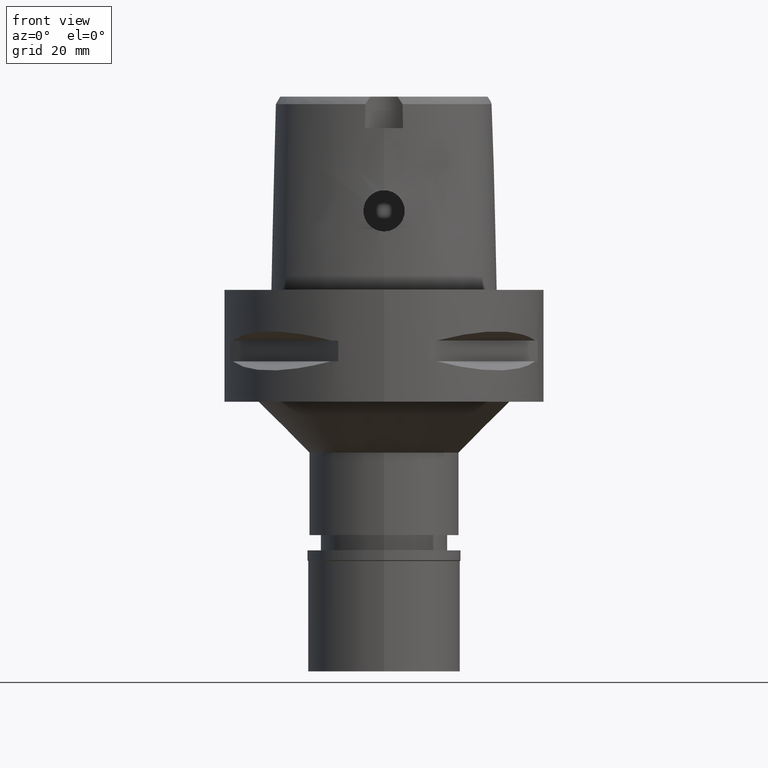
[diagram: clean part render]
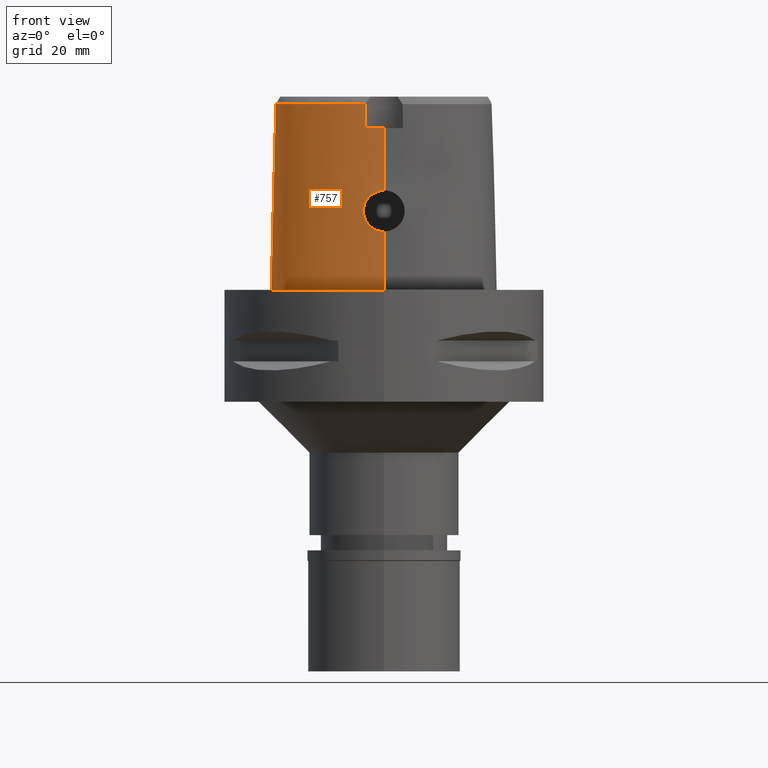
[diagram: same view with one face highlighted and labeled with its STEP entity id]
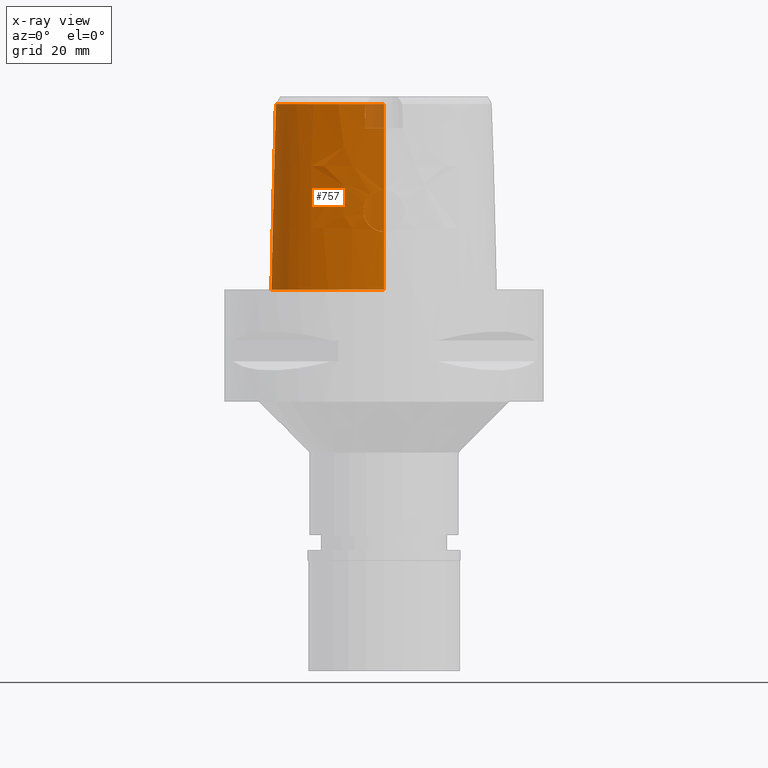
[diagram: x-ray of the same camera — body ghosted, the highlighted face saturated]
A machine part, front view. The second image highlights one B-rep face of the part: STEP entity #757.
The next image is the same camera in x-ray: the body ghosted, the highlighted face saturated — about 2% of this face is hidden behind the body in this view.
In plain terms, the highlighted face is a freeform B-spline surface patch.
Its self-contained STEP definition (entity closure, byte-faithful):
#12 = CARTESIAN_POINT ( 'NONE',  ( -17.27359245833659429, 9.972912913898239751, 36.52186244848000740 ) ) ;
#38 = CARTESIAN_POINT ( 'NONE',  ( -2.842644224804045550, -20.09987142781886504, 18.38477281627273641 ) ) ;
#65 = CARTESIAN_POINT ( 'NONE',  ( -14.67337964306607923, -17.21410156051415541, 9.097698115689833998E-08 ) ) ;
#76 = CARTESIAN_POINT ( 'NONE',  ( -7.420053129394999836, 21.05635743858000097, 11.93048290018000124 ) ) ;
#94 = CARTESIAN_POINT ( 'NONE',  ( -2.438150598142999836, 22.68791636790999888, 24.59140352894999992 ) ) ;
#106 = CARTESIAN_POINT ( 'NONE',  ( -4.049379680853593122, -20.05052626983709274, 15.57776437390323210 ) ) ;
#127 = CARTESIAN_POINT ( 'NONE',  ( -0.5057620903841074655, -20.38876923348000147, 11.44999999999999751 ) ) ;
#131 = CARTESIAN_POINT ( 'NONE',  ( 0.6850314080310000442, 22.83959044425999707, 24.59140352894999992 ) ) ;
#170 = CARTESIAN_POINT ( 'NONE',  ( -2.503210902086999923, 22.99958937651000213, 11.93048290018000124 ) ) ;
#179 = CARTESIAN_POINT ( 'NONE',  ( -17.53318575312999883, 10.12278928418000135, 24.59140352894999992 ) ) ;
#182 = CARTESIAN_POINT ( 'NONE',  ( -3.227766138993819922, -20.20018163078716000, 13.05019263089297255 ) ) ;
#211 = CARTESIAN_POINT ( 'NONE',  ( -1.853278689760999853, -20.08023921223999864, 24.59140352894999992 ) ) ;
#232 = CARTESIAN_POINT ( 'NONE',  ( -20.46725043096000007, 4.555493644599000191, 11.93048290018000124 ) ) ;
#261 = CARTESIAN_POINT ( 'NONE',  ( -19.81622821126000034, -11.44090469092000006, 24.59140352894999992 ) ) ;
#271 = CARTESIAN_POINT ( 'NONE',  ( -17.80867306868999833, 10.28184207847000131, 11.93048290018000124 ) ) ;
#280 = CARTESIAN_POINT ( 'NONE',  ( -1.517109250048611413, -20.16081023951004525, 19.25513181815293606 ) ) ;
#282 = CARTESIAN_POINT ( 'NONE',  ( -11.23887130294999892, -18.91049776131000115, -0.7304377285827000632 ) ) ;
#300 = CARTESIAN_POINT ( 'NONE',  ( -22.07548129233000012, -6.850245535660000051, -0.7304377285827000632 ) ) ;
#328 = CARTESIAN_POINT ( 'NONE',  ( -1.541559166299769856, -20.15999173852587845, 19.24514354693484108 ) ) ;
#347 = CARTESIAN_POINT ( 'NONE',  ( -20.09619618740889635, -10.23243843868398528, 36.52186244848000740 ) ) ;
#349 = CARTESIAN_POINT ( 'NONE',  ( -10.34823235602000047, 18.70095496505999932, 24.59140352894999992 ) ) ;
#353 = CARTESIAN_POINT ( 'NONE',  ( -1.022322972963098264, -20.17472032028548412, 19.42122579223020651 ) ) ;
#396 = CARTESIAN_POINT ( 'NONE',  ( -7.300578999876525366, -19.07170748891996581, 36.52186244848000740 ) ) ;
#399 = CARTESIAN_POINT ( 'NONE',  ( -10.14358066454999907, 18.45723406835000091, 37.25232415771999683 ) ) ;
#404 = CARTESIAN_POINT ( 'NONE',  ( -3.684681583437941832, -20.05099578495418555, 17.18118401796005656 ) ) ;
#430 = CARTESIAN_POINT ( 'NONE',  ( -5.098437016434184343, 22.52602538850953806, 9.097698115689833998E-08 ) ) ;
#439 = CARTESIAN_POINT ( 'NONE',  ( -1.826892150965000023E-12, -20.38876923348000147, 11.44999999999999929 ) ) ;
#442 = CARTESIAN_POINT ( 'NONE',  ( -4.868968408260999858, 21.95285534266999861, 24.59140352894999992 ) ) ;
#444 = B_SPLINE_CURVE_WITH_KNOTS ( 'NONE', 3,
 ( #1472, #2642, #3021, #4498 ),
 .UNSPECIFIED., .F., .F.,
 ( 4, 4 ),
 ( 0.0000000000000000000, 1.000000000000000000 ),
 .UNSPECIFIED. ) ;
#466 = CARTESIAN_POINT ( 'NONE',  ( -3.706339969164205606, -20.13208749098613737, 13.86333114623387708 ) ) ;
#499 = CARTESIAN_POINT ( 'NONE',  ( -1.460230140215000123E-11, 22.56201468012000078, 36.52186680743999858 ) ) ;
#501 = CARTESIAN_POINT ( 'NONE',  ( -3.306170685814154186, -20.19022905683198488, 13.15708177904260978 ) ) ;
#505 = ORIENTED_EDGE ( 'NONE', *, *, #3718, .T. ) ;
#524 = CARTESIAN_POINT ( 'NONE',  ( -1.818479070791829244, -20.33107954721674560, 11.88068138783924965 ) ) ;
#537 = CARTESIAN_POINT ( 'NONE',  ( -0.6149727127517999881, 23.51889465050999917, -0.7304377285827000632 ) ) ;
#545 = CARTESIAN_POINT ( 'NONE',  ( -2.432638892900881977, -20.28554695008533315, 12.25086665577837231 ) ) ;
#581 = VERTEX_POINT ( 'NONE', #3190 ) ;
#585 = CARTESIAN_POINT ( 'NONE',  ( 0.0000000000000000000, -20.18628283968999781, 19.55000000000000071 ) ) ;
#595 = CARTESIAN_POINT ( 'NONE',  ( -6.175998576376000138, -19.37631780525000025, 37.25232415771999683 ) ) ;
#616 = CARTESIAN_POINT ( 'NONE',  ( -18.35112153412999803, -13.96357035167999960, 11.93048290018000124 ) ) ;
#630 = CARTESIAN_POINT ( 'NONE',  ( 2.041042029990999821E-08, -19.88004246002000031, 31.80000004972000127 ) ) ;
#639 = CARTESIAN_POINT ( 'NONE',  ( -20.65879047355999987, -10.48283619042000225, 11.93048290018000124 ) ) ;
#666 = CARTESIAN_POINT ( 'NONE',  ( -21.05621897384000007, -0.4440251833921999847, 37.25232415771999683 ) ) ;
#689 = B_SPLINE_CURVE_WITH_KNOTS ( 'NONE', 3,
 ( #1520, #2659, #396, #2269, #4536, #2988, #1890, #1936, #3057, #347, #4117, #3362, #829, #1542, #1206, #12, #4169, #3036, #3696, #1182, #1466, #1916, #4071 ),
 .UNSPECIFIED., .F., .F.,
 ( 4, 1, 1, 1, 1, 1, 1, 1, 1, 1, 1, 1, 1, 1, 1, 1, 1, 1, 1, 1, 4 ),
 ( 0.0000000000000000000, 0.03580973941717179032, 0.1234633994701274384, 0.1672902294965527004, 0.2111170595229779900, 0.2549438895494032797, 0.2768573045626159246, 0.2987707195758285139, 0.3206841345891462969, 0.3425975496022538036, 0.3864243796287841759, 0.4302512096551042164, 0.4740780396816346998, 0.5617316997344852236, 0.6493853597873358030, 0.7370390198401862714, 0.8246926798930367397, 0.8685195099195671675, 0.9123463399459819101, 0.9561731699724071998, 1.000000000000000000 ),
 .UNSPECIFIED. ) ;
#691 = CARTESIAN_POINT ( 'NONE',  ( -16.97022731185999689, -15.69280483210999932, -0.7304377285827000632 ) ) ;
#702 = CARTESIAN_POINT ( 'NONE',  ( -2.503154198993108537, -19.81241979316106949, 31.80000012753029281 ) ) ;
#737 = CARTESIAN_POINT ( 'NONE',  ( -1.537485109521065318, -20.16012884987485876, 19.24681790168025941 ) ) ;
#757 = ADVANCED_FACE ( 'NONE', ( #3507 ), #2726, .T. ) ;
#783 = CARTESIAN_POINT ( 'NONE',  ( -3.268805573999873815, -20.07507251083795907, 17.90563644384916131 ) ) ;
#824 = CARTESIAN_POINT ( 'NONE',  ( -1.564172219605890035, -20.34618770292913226, 11.76423821976816697 ) ) ;
#827 = CARTESIAN_POINT ( 'NONE',  ( -4.987110662411000206, 22.24795279310000140, 11.93048290018000124 ) ) ;
#829 = CARTESIAN_POINT ( 'NONE',  ( -21.32871527669403022, -4.105831244393638890, 36.52186244848000740 ) ) ;
#834 = CARTESIAN_POINT ( 'NONE',  ( 0.4569144521211999654, 22.85341788937000373, 24.59140352894999992 ) ) ;
#842 = CARTESIAN_POINT ( 'NONE',  ( -2.373090294199000194, 22.37624335929999830, 37.25232415771999683 ) ) ;
#850 = ORIENTED_EDGE ( 'NONE', *, *, #2254, .T. ) ;
#851 = CARTESIAN_POINT ( 'NONE',  ( -3.414766354081451905, -20.17553123358063871, 13.32227826134847959 ) ) ;
#876 = CARTESIAN_POINT ( 'NONE',  ( -13.93560863306000108, 15.24203788822999961, 24.59140352894999992 ) ) ;
#877 = DIRECTION ( 'NONE',  ( 2.246878499361959967E-12, 0.02499051290944955331, -0.9996876883629820520 ) ) ;
#896 = CARTESIAN_POINT ( 'NONE',  ( -16.95889172452467264, -15.67838867007484360, 9.097698115689833998E-08 ) ) ;
#905 = CARTESIAN_POINT ( 'NONE',  ( -1.683448767911816191, -20.33938548367767751, 11.81633612121135712 ) ) ;
#918 = CARTESIAN_POINT ( 'NONE',  ( -14.40795638783079546, 15.64093749852462523, 9.097698115689833998E-08 ) ) ;
#924 = CARTESIAN_POINT ( 'NONE',  ( -14.17879757701000010, 15.44741194577999899, 11.93048290018000124 ) ) ;
#928 = CARTESIAN_POINT ( 'NONE',  ( -2.919743024705032663, -20.23620185233447089, 12.69320823285583444 ) ) ;
#942 = CARTESIAN_POINT ( 'NONE',  ( -2.568271206031000009, 23.31126238510999826, -0.7304377285827000632 ) ) ;
#969 = VERTEX_POINT ( 'NONE', #4251 ) ;
#970 = VECTOR ( 'NONE', #1158, 1000.000000000000114 ) ;
#976 = CARTESIAN_POINT ( 'NONE',  ( -18.58171406677000093, -14.18198046634999976, -0.7304377285827000632 ) ) ;
#988 = CARTESIAN_POINT ( 'NONE',  ( 0.6658292894425998920, 22.52368270243999859, 37.25232415771999683 ) ) ;
#1000 = CARTESIAN_POINT ( 'NONE',  ( -21.36961498828000217, -0.3886497942654000282, 24.59140352894999992 ) ) ;
#1010 = CARTESIAN_POINT ( 'NONE',  ( -18.08416038424000050, 10.44089487275000039, -0.7304377285827000632 ) ) ;
#1014 = CARTESIAN_POINT ( 'NONE',  ( 2.041042029990999821E-08, -19.88004246002000031, 31.80000004972000127 ) ) ;
#1024 = CARTESIAN_POINT ( 'NONE',  ( 0.4439216897654000293, -19.74161838694999815, 37.25232415771999683 ) ) ;
#1049 = CARTESIAN_POINT ( 'NONE',  ( -16.77374382252000018, -15.44292472128999982, 11.93048290018000124 ) ) ;
#1064 = ORIENTED_EDGE ( 'NONE', *, *, #4024, .F. ) ;
#1073 = CARTESIAN_POINT ( 'NONE',  ( -20.96392242513999804, -8.820258291935999750, 24.59140352894999992 ) ) ;
#1093 = CARTESIAN_POINT ( 'NONE',  ( -2.734575487444950603, -20.10590734120546230, 18.48811040389965399 ) ) ;
#1158 = DIRECTION ( 'NONE',  ( -1.119946394831976099E-12, -0.02499051295360945474, -0.9996876883618780463 ) ) ;
#1169 = CARTESIAN_POINT ( 'NONE',  ( -3.482255410549289554, -20.06244592571063734, 17.57215260076259256 ) ) ;
#1182 = CARTESIAN_POINT ( 'NONE',  ( -4.757642277158463884, 21.67478330407492493, 36.52186244848000740 ) ) ;
#1206 = CARTESIAN_POINT ( 'NONE',  ( -19.88562090098468005, 4.345879983792232615, 36.52186244848000740 ) ) ;
#1219 = CARTESIAN_POINT ( 'NONE',  ( -0.5985508175006999387, 23.20171275818999845, 11.93048290018000124 ) ) ;
#1228 = CARTESIAN_POINT ( 'NONE',  ( -3.530526439395825999, -20.15919126135207406, 13.51433048871641240 ) ) ;
#1230 = CARTESIAN_POINT ( 'NONE',  ( -7.259695418013000001, 20.78233561318999989, 24.59140352894999992 ) ) ;
#1243 = CARTESIAN_POINT ( 'NONE',  ( -5.105252916560999665, 22.54305024354000153, -0.7304377285827000632 ) ) ;
#1252 = CARTESIAN_POINT ( 'NONE',  ( -3.389467221042890888, -20.17897964737460370, 13.28322329482683628 ) ) ;
#1273 = CARTESIAN_POINT ( 'NONE',  ( -3.843225092114363584, -20.04326965923009496, 16.80669738706623306 ) ) ;
#1291 = CARTESIAN_POINT ( 'NONE',  ( -20.74942740664785390, 4.657187499224233918, 9.097698115689833998E-08 ) ) ;
#1301 = CARTESIAN_POINT ( 'NONE',  ( -3.399642117332404734, -20.17759579008900772, 13.29885927819635860 ) ) ;
#1359 = VECTOR ( 'NONE', #877, 1000.000000000000114 ) ;
#1360 = CARTESIAN_POINT ( 'NONE',  ( -21.62788398039999649, -4.104079498595999631, 24.59140352894999992 ) ) ;
#1383 = CARTESIAN_POINT ( 'NONE',  ( -20.09084472873000138, -11.59945461180999970, 11.93048290018000124 ) ) ;
#1394 = CARTESIAN_POINT ( 'NONE',  ( -3.637738201363999835, -19.56971413236999879, 36.52186244848000030 ) ) ;
#1402 = CARTESIAN_POINT ( 'NONE',  ( -21.99640701715999924, -0.2778990160120000108, -0.7304377285827000632 ) ) ;
#1424 = CARTESIAN_POINT ( 'NONE',  ( -1.657699300667642373, -20.15606717441237095, 19.19719257872362306 ) ) ;
#1427 = CARTESIAN_POINT ( 'NONE',  ( -21.57281239381000049, -9.001246195536998229, -0.7304377285827000632 ) ) ;
#1448 = CARTESIAN_POINT ( 'NONE',  ( -2.177742652713046567, -20.13383587593456525, 18.91723698669497722 ) ) ;
#1450 = CARTESIAN_POINT ( 'NONE',  ( -21.68301100272000070, -0.3332744051386999917, 11.93048290018000124 ) ) ;
#1466 = CARTESIAN_POINT ( 'NONE',  ( -2.376843896520249189, 22.39422508473658979, 36.52186244848000740 ) ) ;
#1472 = CARTESIAN_POINT ( 'NONE',  ( -3.637738201363999835, -19.56971413236999879, 36.52186244848000030 ) ) ;
#1513 = LINE ( 'NONE', #3737, #970 ) ;
#1520 = CARTESIAN_POINT ( 'NONE',  ( -3.637738201363999835, -19.56971413236999879, 36.52186244848000030 ) ) ;
#1542 = CARTESIAN_POINT ( 'NONE',  ( -21.07430010672828757, -0.4408303445193082482, 36.52186244848000740 ) ) ;
#1548 = CARTESIAN_POINT ( 'NONE',  ( -3.088821078404543119, -20.08580121593758605, 18.13922618177577561 ) ) ;
#1568 = ORIENTED_EDGE ( 'NONE', *, *, #4827, .F. ) ;
#1587 = CARTESIAN_POINT ( 'NONE',  ( -3.921181487225799067, -20.04104752729271155, 16.54729595455363977 ) ) ;
#1617 = CARTESIAN_POINT ( 'NONE',  ( -1.764087239729576595, -20.33452016491563441, 11.85390434643752400 ) ) ;
#1631 = CARTESIAN_POINT ( 'NONE',  ( -18.06826688328639108, 10.43171874886016504, 9.097698115689833998E-08 ) ) ;
#1642 = CARTESIAN_POINT ( 'NONE',  ( -4.049869666589890116, -20.05130014424900864, 15.54464517818031943 ) ) ;
#1666 = CARTESIAN_POINT ( 'NONE',  ( -3.449099681378077875, -20.17079254100121943, 13.37666551660851511 ) ) ;
#1692 = ORIENTED_EDGE ( 'NONE', *, *, #2385, .T. ) ;
#1696 = CARTESIAN_POINT ( 'NONE',  ( -1.643366467240843010, -20.34174424111211010, 11.79820127659679052 ) ) ;
#1735 = CARTESIAN_POINT ( 'NONE',  ( -19.15132520840999675, -12.46323148569000061, 24.59140352894999992 ) ) ;
#1762 = CARTESIAN_POINT ( 'NONE',  ( 0.4520368079393999872, -20.37458458632999836, 11.93048290018000124 ) ) ;
#1784 = CARTESIAN_POINT ( 'NONE',  ( -16.57726033317999992, -15.19304461047999943, 24.59140352894999992 ) ) ;
#1805 = CARTESIAN_POINT ( 'NONE',  ( -19.40779767784000143, -12.64961926656999935, 11.93048290018000124 ) ) ;
#1829 = CARTESIAN_POINT ( 'NONE',  ( -2.304109441790648027, -20.12795370283096830, 18.83496339854076851 ) ) ;
#1831 = CARTESIAN_POINT ( 'NONE',  ( -19.54161169378999929, -11.28235477003999776, 37.25232415771999683 ) ) ;
#1875 = CARTESIAN_POINT ( 'NONE',  ( -1.531373477232931934, -20.16033411362962369, 19.24932383198872898 ) ) ;
#1890 = CARTESIAN_POINT ( 'NONE',  ( -17.90324032096276241, -13.53935111955248871, 36.52186244848000740 ) ) ;
#1895 = CARTESIAN_POINT ( 'NONE',  ( -1.316980362659225356, -20.16708079853606961, 19.33099372388432258 ) ) ;
#1916 = CARTESIAN_POINT ( 'NONE',  ( -0.7901461696979474869, 22.56201478746186595, 36.52186244848000740 ) ) ;
#1921 = CARTESIAN_POINT ( 'NONE',  ( -3.624901445814556755, -20.05423475311931369, 17.30721778208366501 ) ) ;
#1936 = CARTESIAN_POINT ( 'NONE',  ( -18.90964971338694767, -12.28759719904592984, 36.52186244848000740 ) ) ;
#1959 = CARTESIAN_POINT ( 'NONE',  ( -7.580410840777000558, 21.33037926396000117, -0.7304377285827000632 ) ) ;
#1964 = VERTEX_POINT ( 'NONE', #4248 ) ;
#1973 = CARTESIAN_POINT ( 'NONE',  ( -10.74572890912541645, 19.17433593574524409, 9.097698115689833998E-08 ) ) ;
#1985 = CARTESIAN_POINT ( 'NONE',  ( -1.983155699485361856, -20.32016647854749536, 11.96659840089422566 ) ) ;
#2011 = CARTESIAN_POINT ( 'NONE',  ( -4.036685989701395805, -20.04559705587213969, 15.83448227434395150 ) ) ;
#2025 = CARTESIAN_POINT ( 'NONE',  ( -0.8548392421353443460, 23.47499999772602308, 9.097698115689833998E-08 ) ) ;
#2036 = CARTESIAN_POINT ( 'NONE',  ( -1.038020739234101653, -20.37481386655615978, 11.54608152517211117 ) ) ;
#2059 = CARTESIAN_POINT ( 'NONE',  ( 0.7042335266194000853, 23.15549818608999999, 11.93048290018000124 ) ) ;
#2060 = CARTESIAN_POINT ( 'NONE',  ( -3.563535144758283479, -20.15431462485059910, 13.57435568382326530 ) ) ;
#2106 = CARTESIAN_POINT ( 'NONE',  ( -1.886862292295999888, -20.71358860033999960, -0.7304377285827000632 ) ) ;
#2123 = CARTESIAN_POINT ( 'NONE',  ( 6.818629255904112284E-09, -19.98212988583192740, 27.71666688228323849 ) ) ;
#2131 = CARTESIAN_POINT ( 'NONE',  ( -20.36913768734000030, -10.35391841034000038, 24.59140352894999992 ) ) ;
#2133 = VERTEX_POINT ( 'NONE', #2585 ) ;
#2159 = CARTESIAN_POINT ( 'NONE',  ( -20.65947744081000081, -8.729764340136000556, 37.25232415771999683 ) ) ;
#2180 = CARTESIAN_POINT ( 'NONE',  ( -19.66427014726000166, -12.83600704744999987, -0.7304377285827000632 ) ) ;
#2200 = CARTESIAN_POINT ( 'NONE',  ( -14.68244497179999897, -17.23001773136000025, -0.7304377285827000632 ) ) ;
#2213 = CARTESIAN_POINT ( 'NONE',  ( -3.736722311398999796, -19.67781602443999844, 31.80000000000000071 ) ) ;
#2222 = CARTESIAN_POINT ( 'NONE',  ( -2.829090656013601990, -20.10064023172139258, 18.39810733342538995 ) ) ;
#2254 = EDGE_CURVE ( 'NONE', #2795, #4143, #4482, .T. ) ;
#2264 = VERTEX_POINT ( 'NONE', #1394 ) ;
#2269 = CARTESIAN_POINT ( 'NONE',  ( -10.91891098965161255, -18.03046406390174283, 36.52186244848000740 ) ) ;
#2273 = CARTESIAN_POINT ( 'NONE',  ( 0.0000000000000000000, -20.18628283968999781, 19.55000000000000071 ) ) ;
#2300 = CARTESIAN_POINT ( 'NONE',  ( -3.544042445301982536, -20.05881480942190009, 17.46368265279534171 ) ) ;
#2339 = CARTESIAN_POINT ( 'NONE',  ( -1.559082681603555232, -20.34646702749212110, 11.76210801398156924 ) ) ;
#2365 = CARTESIAN_POINT ( 'NONE',  ( -2.902447094934494487, -20.23811977210910129, 12.67539926021274432 ) ) ;
#2368 = CARTESIAN_POINT ( 'NONE',  ( -7.099337706630999278, 20.50831378779999881, 37.25232415771999683 ) ) ;
#2385 = EDGE_CURVE ( 'NONE', #2264, #581, #689, .T. ) ;
#2392 = CARTESIAN_POINT ( 'NONE',  ( -13.69241968910999852, 15.03666383068999934, 37.25232415771999683 ) ) ;
#2396 = CARTESIAN_POINT ( 'NONE',  ( -3.038114073682963046, -20.22283283159520550, 12.82044137986279608 ) ) ;
#2411 = CARTESIAN_POINT ( 'NONE',  ( -6.341471018807172122, -20.29812499775147927, 9.097698115689833998E-08 ) ) ;
#2418 = LINE ( 'NONE', #499, #1359 ) ;
#2419 = CARTESIAN_POINT ( 'NONE',  ( -4.047646305490188112, -20.04912739773012120, 15.64171267836764834 ) ) ;
#2432 = CARTESIAN_POINT ( 'NONE',  ( -11.23259756649648189, -18.89324218535866606, 9.097698115689833998E-08 ) ) ;
#2442 = CARTESIAN_POINT ( 'NONE',  ( -3.756312900613297145, -20.12359791783161711, 13.98583646094322219 ) ) ;
#2486 = CARTESIAN_POINT ( 'NONE',  ( -14.21104793633999996, -16.40237695045999899, 37.25232415771999683 ) ) ;
#2506 = CARTESIAN_POINT ( 'NONE',  ( -11.13012655130000006, -18.61140114874000062, 11.93048290018000124 ) ) ;
#2524 = CARTESIAN_POINT ( 'NONE',  ( 0.6840430853802000888, -20.68668155108999684, -0.7304377285827000632 ) ) ;
#2553 = CARTESIAN_POINT ( 'NONE',  ( 0.6657744310098999696, -19.73734251194999700, 37.25232415771999683 ) ) ;
#2574 = CARTESIAN_POINT ( 'NONE',  ( -20.07948490112000073, -10.22500063026999939, 37.25232415771999683 ) ) ;
#2582 = CARTESIAN_POINT ( 'NONE',  ( 2.041042029990999821E-08, -19.88004246002000031, 31.80000004972000127 ) ) ;
#2585 = CARTESIAN_POINT ( 'NONE',  ( 6.748353224512000053E-11, 23.47499999998000320, 1.585028404822999899E-13 ) ) ;
#2592 = CARTESIAN_POINT ( 'NONE',  ( -2.797511797374346632, -20.10241774780344315, 18.42874118563722163 ) ) ;
#2642 = CARTESIAN_POINT ( 'NONE',  ( -3.671249123513567802, -19.60525173594972514, 34.94790829898666829 ) ) ;
#2659 = CARTESIAN_POINT ( 'NONE',  ( -4.467522189395111809, -19.48130287050614484, 36.52186244848000740 ) ) ;
#2665 = CARTESIAN_POINT ( 'NONE',  ( -3.719815369431773266, -20.04919648017417799, 17.10180286999071697 ) ) ;
#2701 = CARTESIAN_POINT ( 'NONE',  ( -3.867993326607613191, -20.10354406175651576, 14.29758583625211799 ) ) ;
#2709 = EDGE_CURVE ( 'NONE', #1964, #3834, #1513, .T. ) ;
#2717 = CARTESIAN_POINT ( 'NONE',  ( -0.5657070269985999822, 22.56734897354999703, 37.25232415771999683 ) ) ;
#2724 = CARTESIAN_POINT ( 'NONE',  ( -3.732524200809743675, -20.04857405403091164, 17.07187949459015641 ) ) ;
#2726 = B_SPLINE_SURFACE_WITH_KNOTS ( 'NONE', 3, 3, ( 
 ( #3150, #2059, #131, #988 ),
 ( #3578, #4372, #834, #3879 ),
 ( #537, #1219, #3523, #2717 ),
 ( #942, #170, #94, #842 ),
 ( #1243, #827, #442, #2752 ),
 ( #1959, #76, #1230, #2368 ),
 ( #4691, #3747, #349, #399 ),
 ( #3922, #924, #876, #2392 ),
 ( #1010, #271, #179, #3657 ),
 ( #4032, #232, #4802, #3214 ),
 ( #1402, #1450, #1000, #666 ),
 ( #3655, #2950, #1360, #4404 ),
 ( #300, #4331, #2930, #4777 ),
 ( #1427, #4351, #1073, #2159 ),
 ( #4754, #639, #2131, #2574 ),
 ( #2865, #1383, #261, #1831 ),
 ( #2180, #1805, #1735, #3589 ),
 ( #976, #616, #4009, #3285 ),
 ( #691, #1049, #1784, #3242 ),
 ( #2200, #3311, #3264, #2486 ),
 ( #282, #2506, #2900, #4730 ),
 ( #3635, #3936, #3616, #595 ),
 ( #2106, #3568, #211, #4701 ),
 ( #3957, #1762, #2881, #1024 ),
 ( #2524, #3978, #4375, #2553 ) ),
 .UNSPECIFIED., .F., .F., .F.,
 ( 4, 1, 1, 1, 1, 1, 1, 1, 1, 1, 1, 1, 1, 1, 1, 1, 1, 1, 1, 1, 1, 1, 4 ),
 ( 4, 4 ),
 ( -0.01173777939057999917, 0.0000000000000000000, 0.04166666666770999644, 0.08333333333431000578, 0.1250000000009000023, 0.1666666666676000219, 0.2500000000008000267, 0.3333333333340000038, 0.4166666666672000363, 0.5000000000004000134, 0.5416666666671000607, 0.5833333333336000459, 0.6250000000002999823, 0.6458333333335000148, 0.6666666666668999985, 0.6875000000001999512, 0.7083333333335000148, 0.7500000000001000311, 0.7916666666667000474, 0.8333333333333000637, 0.9166666666666000163, 1.000000000000000000, 1.008985696609000060 ),
 ( 1.038539636232999935E-10, 0.9999999947033999526 ),
 .UNSPECIFIED. ) ;
#2748 = CARTESIAN_POINT ( 'NONE',  ( -3.762873852575739253, -20.12247486435284216, 14.00221556960801728 ) ) ;
#2752 = CARTESIAN_POINT ( 'NONE',  ( -4.750826154110999511, 21.65775789223000203, 37.25232415771999683 ) ) ;
#2763 = CARTESIAN_POINT ( 'NONE',  ( -20.93173252003211360, -10.60431640532882014, 9.097698115689833998E-08 ) ) ;
#2775 = CARTESIAN_POINT ( 'NONE',  ( -3.752368816489391357, -20.12426997362392456, 13.97609724828192590 ) ) ;
#2789 = CARTESIAN_POINT ( 'NONE',  ( -19.64947365679667968, -12.82525390490606654, 9.097698115689833998E-08 ) ) ;
#2795 = VERTEX_POINT ( 'NONE', #2582 ) ;
#2797 = CARTESIAN_POINT ( 'NONE',  ( -4.050824060365642687, -20.05812441753792896, 15.26907801503315376 ) ) ;
#2855 = CARTESIAN_POINT ( 'NONE',  ( 6.838598847829469373E-09, -20.08420636276060733, 23.63333344114165513 ) ) ;
#2865 = CARTESIAN_POINT ( 'NONE',  ( -20.36546124619000153, -11.75800453268999846, -0.7304377285827000632 ) ) ;
#2870 = CARTESIAN_POINT ( 'NONE',  ( -3.736722311398999796, -19.67781602443999844, 31.80000000000000071 ) ) ;
#2881 = CARTESIAN_POINT ( 'NONE',  ( 0.4479792488524000360, -20.05810148664000181, 24.59140352894999992 ) ) ;
#2900 = CARTESIAN_POINT ( 'NONE',  ( -11.02138179964999942, -18.31230453615999920, 24.59140352894999992 ) ) ;
#2930 = CARTESIAN_POINT ( 'NONE',  ( -21.44619292315999814, -6.759806549438999390, 24.59140352894999992 ) ) ;
#2948 = CARTESIAN_POINT ( 'NONE',  ( -2.575227474449196752, -20.11439446486372518, 18.62720322531295736 ) ) ;
#2950 = CARTESIAN_POINT ( 'NONE',  ( -21.94536977351000218, -4.102220499319000346, 11.93048290018000124 ) ) ;
#2988 = CARTESIAN_POINT ( 'NONE',  ( -16.39211280191674547, -14.95758113318977500, 36.52186244848000740 ) ) ;
#2997 = CARTESIAN_POINT ( 'NONE',  ( -1.488566410418969532, -20.16175119974805341, 19.26659127891734968 ) ) ;
#3018 = EDGE_CURVE ( 'NONE', #581, #2133, #2418, .T. ) ;
#3021 = CARTESIAN_POINT ( 'NONE',  ( -3.704239276368590961, -19.64128040965313460, 33.37395414949332917 ) ) ;
#3036 = CARTESIAN_POINT ( 'NONE',  ( -10.15538788052844765, 18.47129535093822028, 36.52186244848000740 ) ) ;
#3041 = CARTESIAN_POINT ( 'NONE',  ( -2.851683884577051131, -20.09935733381807665, 18.37583716728910943 ) ) ;
#3045 = CARTESIAN_POINT ( 'NONE',  ( -20.34961798359399765, -11.74885742073069927, 9.097698115689833998E-08 ) ) ;
#3057 = CARTESIAN_POINT ( 'NONE',  ( -19.55745547455589772, -11.29150218116449977, 36.52186244848000740 ) ) ;
#3104 = CARTESIAN_POINT ( 'NONE',  ( -2.886076875336457626, -20.23992936605077375, 12.65867033671556463 ) ) ;
#3116 = CARTESIAN_POINT ( 'NONE',  ( -22.05732874095811624, -6.847636718424819691, 9.097698115689833998E-08 ) ) ;
#3124 = CARTESIAN_POINT ( 'NONE',  ( -3.925552445112192590, -20.09219292625391518, 14.49440227519952273 ) ) ;
#3139 = CARTESIAN_POINT ( 'NONE',  ( -2.564517726489806027, 23.29328124775888043, 9.097698115689833998E-08 ) ) ;
#3150 = CARTESIAN_POINT ( 'NONE',  ( 0.7234356452078001265, 23.47140592790999847, -0.7304377285827000632 ) ) ;
#3152 = CARTESIAN_POINT ( 'NONE',  ( -3.727471183091961571, -20.04882031630656414, 17.08382468548839483 ) ) ;
#3175 = CARTESIAN_POINT ( 'NONE',  ( -4.029435596787171114, -20.06721338045104019, 15.01440174772630165 ) ) ;
#3190 = CARTESIAN_POINT ( 'NONE',  ( -1.460230140215000123E-11, 22.56201468012000078, 36.52186680743999858 ) ) ;
#3208 = B_SPLINE_CURVE_WITH_KNOTS ( 'NONE', 3,
 ( #3799, #2025, #3139, #430, #4204, #1973, #918, #1631, #1291, #3449, #4628, #3116, #3778, #2763, #3045, #2789, #4230, #896, #65, #2432, #2411, #4254, #4575 ),
 .UNSPECIFIED., .F., .F.,
 ( 4, 1, 1, 1, 1, 1, 1, 1, 1, 1, 1, 1, 1, 1, 1, 1, 1, 1, 1, 1, 4 ),
 ( 0.0000000000000000000, 0.04166666666770999644, 0.08333333333431000578, 0.1250000000009000023, 0.1666666666676000219, 0.2500000000008000267, 0.3333333333340000038, 0.4166666666672000363, 0.5000000000004000134, 0.5416666666671000607, 0.5833333333336000459, 0.6250000000002999823, 0.6458333333335000148, 0.6666666666668999985, 0.6875000000001999512, 0.7083333333335000148, 0.7500000000001000311, 0.7916666666667000474, 0.8333333333333000637, 0.9166666666666000163, 1.000000000000000000 ),
 .UNSPECIFIED. ) ;
#3214 = CARTESIAN_POINT ( 'NONE',  ( -19.86834419230000037, 4.339653624971999690, 37.25232415771999683 ) ) ;
#3242 = CARTESIAN_POINT ( 'NONE',  ( -16.38077684383999966, -14.94316449966000171, 37.25232415771999683 ) ) ;
#3264 = CARTESIAN_POINT ( 'NONE',  ( -14.36818028149000170, -16.67825721075999823, 24.59140352894999992 ) ) ;
#3285 = CARTESIAN_POINT ( 'NONE',  ( -17.88993646885999667, -13.52675012233000018, 37.25232415771999683 ) ) ;
#3307 = CARTESIAN_POINT ( 'NONE',  ( -2.505934756320245427, -20.11793384866887280, 18.68274901530188004 ) ) ;
#3311 = CARTESIAN_POINT ( 'NONE',  ( -14.52531262664999900, -16.95413747105999747, 11.93048290018000124 ) ) ;
#3331 = CARTESIAN_POINT ( 'NONE',  ( -0.5021716783600147505, -20.18408045504152426, 19.52742875042727988 ) ) ;
#3362 = CARTESIAN_POINT ( 'NONE',  ( -21.14970188363873760, -6.717195958888031448, 36.52186244848000740 ) ) ;
#3391 = ORIENTED_EDGE ( 'NONE', *, *, #3934, .F. ) ;
#3396 = CARTESIAN_POINT ( 'NONE',  ( -2.857165305791137033, -20.09904464782460565, 18.37038878283498988 ) ) ;
#3449 = CARTESIAN_POINT ( 'NONE',  ( -21.97832647561342156, -0.2810937503979882290, 9.097698115689833998E-08 ) ) ;
#3460 = CARTESIAN_POINT ( 'NONE',  ( -3.998373555730024176, -20.04197848594951736, 16.15803280836560418 ) ) ;
#3485 = CARTESIAN_POINT ( 'NONE',  ( -2.661086531837272950, -20.26468989241871554, 12.43122826826967220 ) ) ;
#3507 = FACE_OUTER_BOUND ( 'NONE', #4160, .T. ) ;
#3508 = CARTESIAN_POINT ( 'NONE',  ( -1.577312737453801850, -20.34546303540646051, 11.76976738801804423 ) ) ;
#3523 = CARTESIAN_POINT ( 'NONE',  ( -0.5821289222497000315, 22.88453086587000129, 24.59140352894999992 ) ) ;
#3534 = CARTESIAN_POINT ( 'NONE',  ( -2.094959262942234890, -20.31210281200453949, 12.03133014621465691 ) ) ;
#3568 = CARTESIAN_POINT ( 'NONE',  ( -1.870070491027999937, -20.39691390628999912, 11.93048290018000124 ) ) ;
#3578 = CARTESIAN_POINT ( 'NONE',  ( 0.4823619558080999847, 23.48603818335999804, -0.7304377285827000632 ) ) ;
#3589 = CARTESIAN_POINT ( 'NONE',  ( -18.89485273899000006, -12.27684370481000009, 37.25232415771999683 ) ) ;
#3616 = CARTESIAN_POINT ( 'NONE',  ( -6.232237576554999769, -19.68961175378999684, 24.59140352894999992 ) ) ;
#3635 = CARTESIAN_POINT ( 'NONE',  ( -6.344715576914000010, -20.31619965087999802, -0.7304377285827000632 ) ) ;
#3652 = CARTESIAN_POINT ( 'NONE',  ( -1.835567414183276513, -20.14908920623196664, 19.11987278874767071 ) ) ;
#3655 = CARTESIAN_POINT ( 'NONE',  ( -22.26285556660999987, -4.100361500042000173, -0.7304377285827000632 ) ) ;
#3657 = CARTESIAN_POINT ( 'NONE',  ( -17.25769843756999933, 9.963736489894001735, 37.25232415771999683 ) ) ;
#3696 = CARTESIAN_POINT ( 'NONE',  ( -7.108589416785451753, 20.52412325828104400, 36.52186244848000740 ) ) ;
#3718 = EDGE_CURVE ( 'NONE', #2133, #3834, #3208, .T. ) ;
#3724 = CARTESIAN_POINT ( 'NONE',  ( -1.218721347287889722, -20.16976495482640885, 19.36288522627060615 ) ) ;
#3737 = CARTESIAN_POINT ( 'NONE',  ( -1.826892150965000023E-12, -20.38876923348000147, 11.44999999999999929 ) ) ;
#3747 = CARTESIAN_POINT ( 'NONE',  ( -10.55288404747999920, 18.94467586175999685, 11.93048290018000124 ) ) ;
#3752 = CARTESIAN_POINT ( 'NONE',  ( -3.649884701455146097, -20.05285250404020658, 17.25609622753647443 ) ) ;
#3778 = CARTESIAN_POINT ( 'NONE',  ( -21.55524825791045274, -8.996025389975200071, 9.097698115689833998E-08 ) ) ;
#3785 = CARTESIAN_POINT ( 'NONE',  ( -4.043903647287192982, -20.04716234446224377, 15.73783654892842598 ) ) ;
#3799 = CARTESIAN_POINT ( 'NONE',  ( 6.748353224512000053E-11, 23.47499999998000320, 1.585028404822999899E-13 ) ) ;
#3807 = CARTESIAN_POINT ( 'NONE',  ( -2.959716986367469715, -20.23173476586267583, 12.73513239540733899 ) ) ;
#3834 = VERTEX_POINT ( 'NONE', #4299 ) ;
#3839 = CARTESIAN_POINT ( 'NONE',  ( -3.655146143328289909, -20.14040339822715708, 13.75072537538634698 ) ) ;
#3865 = CARTESIAN_POINT ( 'NONE',  ( -3.794744366116956424, -20.11695111181107976, 14.08417169445098160 ) ) ;
#3879 = CARTESIAN_POINT ( 'NONE',  ( 0.4441907002777999991, 22.53710774237999814, 37.25232415771999683 ) ) ;
#3889 = CARTESIAN_POINT ( 'NONE',  ( -3.772624667653873054, -20.12079914041069273, 14.02679058607979456 ) ) ;
#3922 = CARTESIAN_POINT ( 'NONE',  ( -14.42198652095999911, 15.65278600331999925, -0.7304377285827000632 ) ) ;
#3934 = EDGE_CURVE ( 'NONE', #2264, #4143, #444, .T. ) ;
#3936 = CARTESIAN_POINT ( 'NONE',  ( -6.288476576734999490, -20.00290570234000143, 11.93048290018000124 ) ) ;
#3957 = CARTESIAN_POINT ( 'NONE',  ( 0.4560943670262999627, -20.69106768602000201, -0.7304377285827000632 ) ) ;
#3978 = CARTESIAN_POINT ( 'NONE',  ( 0.6779535339233999647, -20.37023520470999927, 11.93048290018000124 ) ) ;
#4009 = CARTESIAN_POINT ( 'NONE',  ( -18.12052900149999957, -13.74516023699999856, 24.59140352894999992 ) ) ;
#4024 = EDGE_CURVE ( 'NONE', #969, #1964, #4774, .T. ) ;
#4032 = CARTESIAN_POINT ( 'NONE',  ( -20.76670355030000081, 4.663413654412000398, -0.7304377285827000632 ) ) ;
#4071 = CARTESIAN_POINT ( 'NONE',  ( -1.460230140215000123E-11, 22.56201468012000078, 36.52186680743999858 ) ) ;
#4079 = CARTESIAN_POINT ( 'NONE',  ( -0.2465765836286593349, -20.18628283968999781, 19.54999999999999716 ) ) ;
#4117 = CARTESIAN_POINT ( 'NONE',  ( -20.67704215116114952, -8.734985316449327186, 36.52186244848000740 ) ) ;
#4122 = CARTESIAN_POINT ( 'NONE',  ( -3.701410464305299630, -20.05012158904431985, 17.14416990046802525 ) ) ;
#4143 = VERTEX_POINT ( 'NONE', #2870 ) ;
#4160 = EDGE_LOOP ( 'NONE', ( #4312, #1064, #1568, #850, #3391, #1692, #4354, #505 ) ) ;
#4164 = CARTESIAN_POINT ( 'NONE',  ( -4.017500813185262309, -20.04299949826227589, 16.02823848900198556 ) ) ;
#4169 = CARTESIAN_POINT ( 'NONE',  ( -13.70645028110836527, 15.04851272300226128, 36.52186244848000740 ) ) ;
#4185 = CARTESIAN_POINT ( 'NONE',  ( -3.836472075751085953, -20.10950303034018205, 14.19905147918430721 ) ) ;
#4204 = CARTESIAN_POINT ( 'NONE',  ( -7.571159433198838329, 21.31457031052672946, 9.097698115689833998E-08 ) ) ;
#4213 = CARTESIAN_POINT ( 'NONE',  ( -1.597057939740940569, -20.34436679637913059, 11.77813687721772240 ) ) ;
#4230 = CARTESIAN_POINT ( 'NONE',  ( -18.56841064976843825, -14.16937988124191250, 9.097698115689833998E-08 ) ) ;
#4241 = CARTESIAN_POINT ( 'NONE',  ( -3.734197410684453100, -20.04849284042750668, 17.06791047878780887 ) ) ;
#4248 = CARTESIAN_POINT ( 'NONE',  ( -1.826892150965000023E-12, -20.38876923348000147, 11.44999999999999929 ) ) ;
#4251 = CARTESIAN_POINT ( 'NONE',  ( 0.0000000000000000000, -20.18628283968999781, 19.55000000000000071 ) ) ;
#4254 = CARTESIAN_POINT ( 'NONE',  ( -2.113823672929088460, -20.67499999772151398, 9.097698115689833998E-08 ) ) ;
#4263 = CARTESIAN_POINT ( 'NONE',  ( -3.383715173038646107, -20.17975883890822786, 13.27445734575835523 ) ) ;
#4299 = CARTESIAN_POINT ( 'NONE',  ( -1.465428451571000222E-11, -20.67499999999999716, 1.614634352146999882E-13 ) ) ;
#4312 = ORIENTED_EDGE ( 'NONE', *, *, #2709, .F. ) ;
#4331 = CARTESIAN_POINT ( 'NONE',  ( -21.76083710773999869, -6.805026042549000564, 11.93048290018000124 ) ) ;
#4351 = CARTESIAN_POINT ( 'NONE',  ( -21.26836740947000237, -8.910752243737000811, 11.93048290018000124 ) ) ;
#4354 = ORIENTED_EDGE ( 'NONE', *, *, #3018, .T. ) ;
#4372 = CARTESIAN_POINT ( 'NONE',  ( 0.4696382039645999873, 23.16972803636999956, 11.93048290018000124 ) ) ;
#4375 = CARTESIAN_POINT ( 'NONE',  ( 0.6718639824665999516, -20.05378885833000169, 24.59140352894999992 ) ) ;
#4404 = CARTESIAN_POINT ( 'NONE',  ( -21.31039818728999791, -4.105938497872999804, 37.25232415771999683 ) ) ;
#4424 = CARTESIAN_POINT ( 'NONE',  ( -2.681133769227684649, -20.10878624052932651, 18.53581881061739267 ) ) ;
#4482 = B_SPLINE_CURVE_WITH_KNOTS ( 'NONE', 3,
 ( #1014, #4745, #702, #2213 ),
 .UNSPECIFIED., .F., .F.,
 ( 4, 4 ),
 ( 0.0000000000000000000, 1.000000000000000000 ),
 .UNSPECIFIED. ) ;
#4498 = CARTESIAN_POINT ( 'NONE',  ( -3.736722311398999796, -19.67781602443999844, 31.80000000000000071 ) ) ;
#4536 = CARTESIAN_POINT ( 'NONE',  ( -14.22011356156431994, -16.41829364185970164, 36.52186244848000740 ) ) ;
#4560 = CARTESIAN_POINT ( 'NONE',  ( -2.890880195730459956, -20.23939915287971303, 12.66356206272130436 ) ) ;
#4575 = CARTESIAN_POINT ( 'NONE',  ( -1.465428451571000222E-11, -20.67499999999999716, 1.614634352146999882E-13 ) ) ;
#4612 = CARTESIAN_POINT ( 'NONE',  ( -3.102591876321532549, -20.21525786852501128, 12.89600187261488884 ) ) ;
#4628 = CARTESIAN_POINT ( 'NONE',  ( -22.24453907626518046, -4.100468750013646968, 9.097698115689833998E-08 ) ) ;
#4639 = CARTESIAN_POINT ( 'NONE',  ( -3.476923561295590659, -20.16686555754476728, 13.42280173412932776 ) ) ;
#4643 = B_SPLINE_CURVE_WITH_KNOTS ( 'NONE', 3,
 ( #630, #2123, #2855, #585 ),
 .UNSPECIFIED., .F., .F.,
 ( 4, 4 ),
 ( 0.0000000000000000000, 1.000000000000000000 ),
 .UNSPECIFIED. ) ;
#4663 = CARTESIAN_POINT ( 'NONE',  ( -3.956609622376257906, -20.08538123813847065, 14.62526888763670385 ) ) ;
#4691 = CARTESIAN_POINT ( 'NONE',  ( -10.75753573895000059, 19.18839675845999793, -0.7304377285827000632 ) ) ;
#4701 = CARTESIAN_POINT ( 'NONE',  ( -1.836486888492999903, -19.76356451819000171, 37.25232415771999683 ) ) ;
#4730 = CARTESIAN_POINT ( 'NONE',  ( -10.91263704800999967, -18.01320792358999867, 37.25232415771999683 ) ) ;
#4745 = CARTESIAN_POINT ( 'NONE',  ( -1.251533273950329761, -19.88005341379845703, 31.80000012753029281 ) ) ;
#4754 = CARTESIAN_POINT ( 'NONE',  ( -20.94844325977999944, -10.61175397049000146, -0.7304377285827000632 ) ) ;
#4773 = CARTESIAN_POINT ( 'NONE',  ( -1.544757151706485088, -20.15988381023242582, 19.24382508131249381 ) ) ;
#4774 = B_SPLINE_CURVE_WITH_KNOTS ( 'NONE', 3,
 ( #2273, #4079, #3331, #4800, #353, #3724, #1895, #4820, #2997, #280, #1875, #737, #328, #4773, #1424, #3652, #1448, #1829, #3307, #2948, #4424, #1093, #2592, #2222, #38, #3041, #3396, #1548, #783, #1169, #2300, #1921, #3752, #404, #4122, #2665, #3152, #2724, #4241, #1273, #1587, #3460, #4164, #2011, #3785, #2419, #106, #1642, #2797, #3175, #4663, #3124, #2701, #4185, #3865, #3889, #2748, #2442, #2775, #466, #3839, #2060, #1228, #4639, #1666, #851, #1301, #1252, #4263, #501, #182, #4612, #2396, #3807, #928, #2365, #4560, #3104, #3485, #545, #3534, #1985, #524, #1617, #905, #1696, #4213, #3508, #824, #2339, #2036, #127, #439 ),
 .UNSPECIFIED., .F., .F.,
 ( 4, 2, 2, 1, 1, 1, 1, 1, 2, 2, 2, 2, 2, 1, 1, 1, 2, 2, 2, 2, 2, 1, 1, 2, 2, 2, 2, 1, 2, 2, 2, 2, 1, 1, 1, 2, 2, 2, 2, 1, 1, 2, 2, 2, 1, 1, 1, 2, 2, 2, 2, 2, 1, 1, 2, 2, 4 ),
 ( 0.0000000000000000000, 0.06250000000000409395, 0.09375000000000623113, 0.1093750000000071332, 0.1171875000000076189, 0.1210937500000078548, 0.1230468750000079659, 0.1240234375000081324, 0.1245117187500081046, 0.1250000000000080491, 0.1875000000000254519, 0.2187500000000341394, 0.2343750000000382749, 0.2421875000000403566, 0.2460937500000414113, 0.2480468750000419109, 0.2490234375000420219, 0.2500000000000421330, 0.3125000000000463518, 0.3437500000000481282, 0.3593750000000489608, 0.3671875000000497935, 0.3710937500000497935, 0.3730468750000492939, 0.3750000000000488498, 0.4375000000000373590, 0.4687500000000316414, 0.4843750000000291989, 0.4921875000000275335, 0.5000000000000258682, 0.5625000000000163203, 0.5937500000000115463, 0.6093750000000092149, 0.6171875000000081046, 0.6210937500000077716, 0.6230468750000076605, 0.6250000000000074385, 0.6562500000000033307, 0.6718750000000013323, 0.6796875000000005551, 0.6835937500000001110, 0.6855468749999998890, 0.6874999999999997780, 0.7187499999999992228, 0.7343749999999990008, 0.7421874999999988898, 0.7460937499999990008, 0.7480468749999990008, 0.7499999999999990008, 0.8124999999999984457, 0.8437499999999982236, 0.8593749999999981126, 0.8671874999999981126, 0.8710937499999980016, 0.8730468749999981126, 0.8749999999999982236, 1.000000000000000000 ),
 .UNSPECIFIED. ) ;
#4777 = CARTESIAN_POINT ( 'NONE',  ( -21.13154873857000027, -6.714587056328999992, 37.25232415771999683 ) ) ;
#4800 = CARTESIAN_POINT ( 'NONE',  ( -0.8915576281005138659, -20.17747330109607873, 19.45285841883497824 ) ) ;
#4802 = CARTESIAN_POINT ( 'NONE',  ( -20.16779731163000022, 4.447573634784999896, 24.59140352894999992 ) ) ;
#4820 = CARTESIAN_POINT ( 'NONE',  ( -1.431428138894698554, -20.16358795413262683, 19.28888599388858083 ) ) ;
#4827 = EDGE_CURVE ( 'NONE', #2795, #969, #4643, .T. ) ;